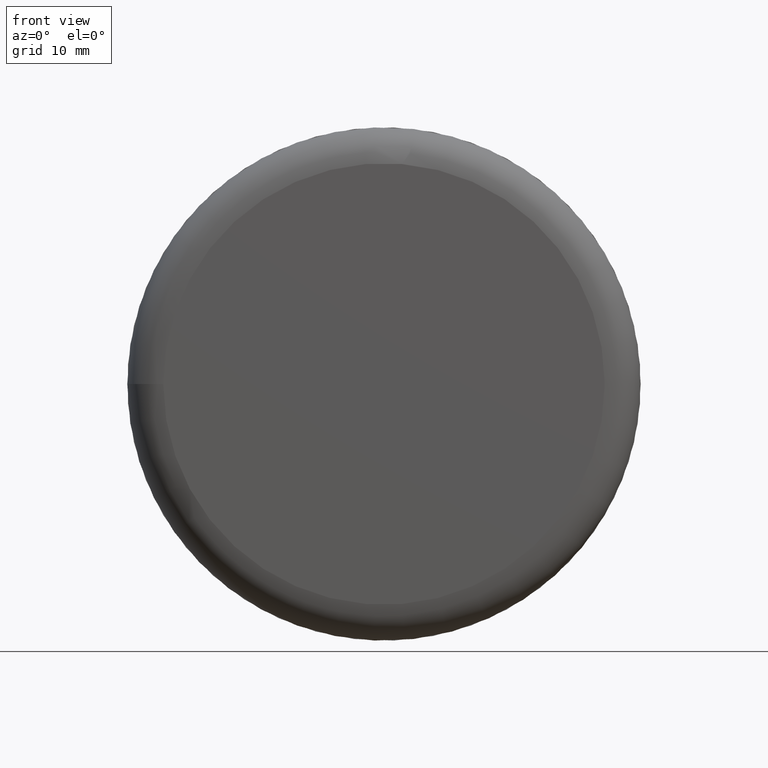
[diagram: clean part render]
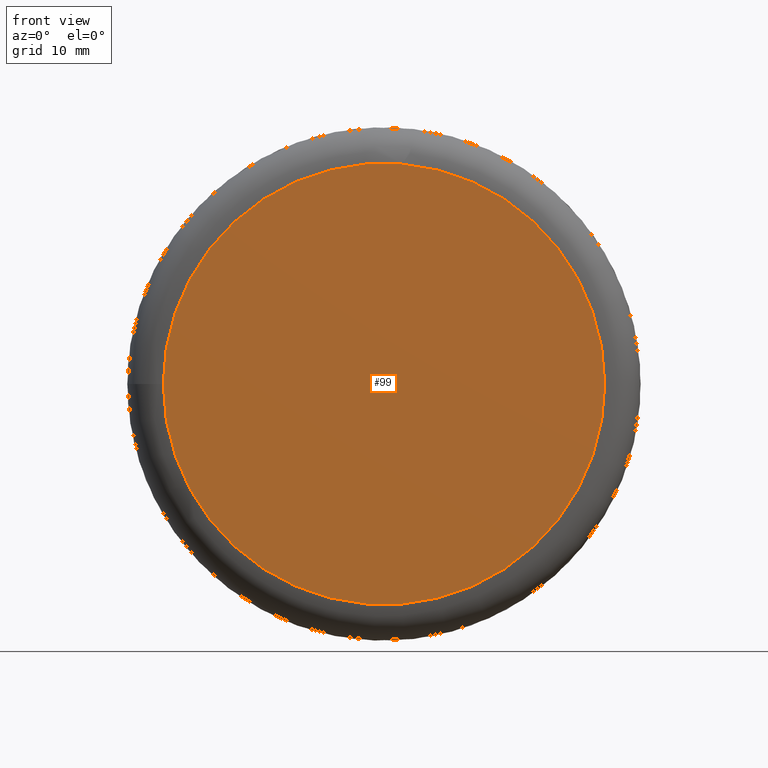
[diagram: same view with one face highlighted and labeled with its STEP entity id]
A machine part, front view. The second image highlights one B-rep face of the part: STEP entity #99.
In plain terms, the highlighted planar face has unit normal (0, 1, 0).
Its self-contained STEP definition (entity closure, byte-faithful):
#18=PLANE('',#114);
#32=FACE_OUTER_BOUND('',#43,.T.);
#43=EDGE_LOOP('',(#83));
#57=CIRCLE('',#113,24.5);
#65=VERTEX_POINT('',#170);
#73=EDGE_CURVE('',#65,#65,#57,.T.);
#83=ORIENTED_EDGE('',*,*,#73,.F.);
#99=ADVANCED_FACE('',(#32),#18,.F.);
#113=AXIS2_PLACEMENT_3D('',#171,#138,#139);
#114=AXIS2_PLACEMENT_3D('',#172,#140,#141);
#138=DIRECTION('center_axis',(0.,1.,0.));
#139=DIRECTION('ref_axis',(1.,0.,0.));
#140=DIRECTION('center_axis',(0.,1.,0.));
#141=DIRECTION('ref_axis',(0.,0.,1.));
#170=CARTESIAN_POINT('',(-24.5,0.,3.00038465791102E-15));
#171=CARTESIAN_POINT('Origin',(0.,0.,0.));
#172=CARTESIAN_POINT('Origin',(2.90853614797496E-16,0.,0.));